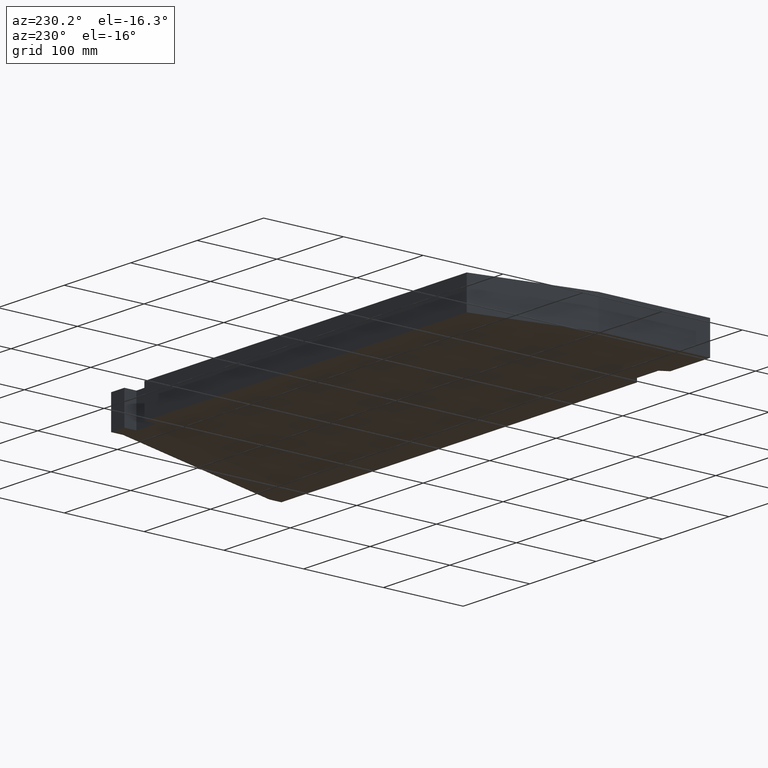
[diagram: clean part render]
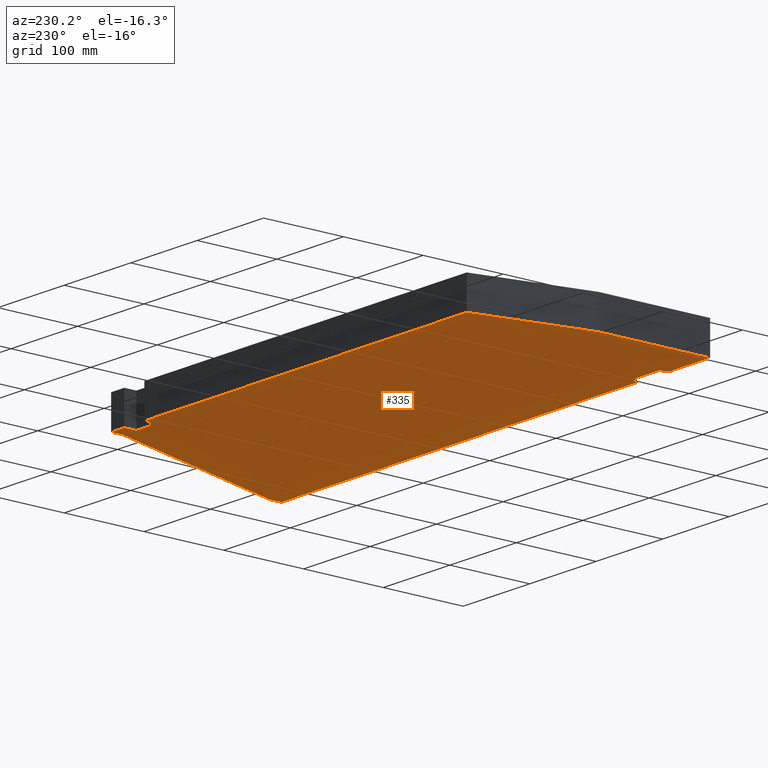
[diagram: same view with one face highlighted and labeled with its STEP entity id]
A machine part, auxiliary view. The second image highlights one B-rep face of the part: STEP entity #335.
In plain terms, the highlighted planar face has unit normal (0, 0, 1).
Its self-contained STEP definition (entity closure, byte-faithful):
#29=FACE_OUTER_BOUND($,#46,.T.);
#46=EDGE_LOOP($,(#287,#288,#289,#290,#291,#292,#293,#294,#295,#296,#297,
#298,#299,#300,#301));
#47=LINE($,#441,#92);
#51=LINE($,#449,#96);
#54=LINE($,#455,#99);
#57=LINE($,#461,#102);
#60=LINE($,#467,#105);
#63=LINE($,#473,#108);
#66=LINE($,#479,#111);
#69=LINE($,#485,#114);
#72=LINE($,#491,#117);
#75=LINE($,#497,#120);
#78=LINE($,#503,#123);
#81=LINE($,#509,#126);
#84=LINE($,#515,#129);
#87=LINE($,#521,#132);
#90=LINE($,#526,#135);
#92=VECTOR($,#360,143.178210632764);
#96=VECTOR($,#366,485.);
#99=VECTOR($,#371,15.);
#102=VECTOR($,#376,30.);
#105=VECTOR($,#381,15.);
#108=VECTOR($,#386,20.);
#111=VECTOR($,#391,15.);
#114=VECTOR($,#396,262.488094968134);
#117=VECTOR($,#401,14.9999999999999);
#120=VECTOR($,#406,535.);
#123=VECTOR($,#411,11.5470053837925);
#126=VECTOR($,#416,38.4529946162075);
#129=VECTOR($,#421,11.5470053837925);
#132=VECTOR($,#426,60.0000000000001);
#135=VECTOR($,#431,140.);
#137=VERTEX_POINT($,#439);
#138=VERTEX_POINT($,#440);
#141=VERTEX_POINT($,#448);
#143=VERTEX_POINT($,#454);
#145=VERTEX_POINT($,#460);
#147=VERTEX_POINT($,#466);
#149=VERTEX_POINT($,#472);
#151=VERTEX_POINT($,#478);
#153=VERTEX_POINT($,#484);
#155=VERTEX_POINT($,#490);
#157=VERTEX_POINT($,#496);
#159=VERTEX_POINT($,#502);
#161=VERTEX_POINT($,#508);
#163=VERTEX_POINT($,#514);
#165=VERTEX_POINT($,#520);
#167=EDGE_CURVE($,#137,#138,#47,.T.);
#171=EDGE_CURVE($,#138,#141,#51,.T.);
#174=EDGE_CURVE($,#141,#143,#54,.T.);
#177=EDGE_CURVE($,#143,#145,#57,.T.);
#180=EDGE_CURVE($,#145,#147,#60,.T.);
#183=EDGE_CURVE($,#147,#149,#63,.T.);
#186=EDGE_CURVE($,#149,#151,#66,.T.);
#189=EDGE_CURVE($,#151,#153,#69,.T.);
#192=EDGE_CURVE($,#153,#155,#72,.T.);
#195=EDGE_CURVE($,#155,#157,#75,.T.);
#198=EDGE_CURVE($,#157,#159,#78,.T.);
#201=EDGE_CURVE($,#159,#161,#81,.T.);
#204=EDGE_CURVE($,#161,#163,#84,.T.);
#207=EDGE_CURVE($,#163,#165,#87,.T.);
#210=EDGE_CURVE($,#165,#137,#90,.T.);
#287=ORIENTED_EDGE($,*,*,#210,.T.);
#288=ORIENTED_EDGE($,*,*,#167,.T.);
#289=ORIENTED_EDGE($,*,*,#171,.T.);
#290=ORIENTED_EDGE($,*,*,#174,.T.);
#291=ORIENTED_EDGE($,*,*,#177,.T.);
#292=ORIENTED_EDGE($,*,*,#180,.T.);
#293=ORIENTED_EDGE($,*,*,#183,.T.);
#294=ORIENTED_EDGE($,*,*,#186,.T.);
#295=ORIENTED_EDGE($,*,*,#189,.T.);
#296=ORIENTED_EDGE($,*,*,#192,.T.);
#297=ORIENTED_EDGE($,*,*,#195,.T.);
#298=ORIENTED_EDGE($,*,*,#198,.T.);
#299=ORIENTED_EDGE($,*,*,#201,.T.);
#300=ORIENTED_EDGE($,*,*,#204,.T.);
#301=ORIENTED_EDGE($,*,*,#207,.T.);
#318=PLANE($,#355);
#335=ADVANCED_FACE($,(#29),#318,.F.);
#355=AXIS2_PLACEMENT_3D($,#529,#435,#436);
#360=DIRECTION($,(0.209529088730874,0.97780241407741,0.));
#366=DIRECTION($,(1.,7.32518284288763E-017,0.));
#371=DIRECTION($,(0.,-1.,0.));
#376=DIRECTION($,(1.,0.,0.));
#381=DIRECTION($,(0.,1.,0.));
#386=DIRECTION($,(1.,0.,0.));
#391=DIRECTION($,(0.,-1.,0.));
#396=DIRECTION($,(0.304775727103784,-0.952424147199324,0.));
#401=DIRECTION($,(0.,-1.,0.));
#406=DIRECTION($,(-1.,-2.65623452620598E-016,0.));
#411=DIRECTION($,(-0.499999999999999,0.866025403784439,0.));
#416=DIRECTION($,(-1.,0.,0.));
#421=DIRECTION($,(-0.500000000000001,-0.866025403784438,0.));
#426=DIRECTION($,(-1.,0.,0.));
#431=DIRECTION($,(2.53765262771464E-016,1.,0.));
#435=DIRECTION('center_axis',(0.,0.,1.));
#436=DIRECTION('ref_axis',(1.,0.,0.));
#439=CARTESIAN_POINT('',(-179.031144331396,-20.3460207612457,0.));
#440=CARTESIAN_POINT('',(-149.031144331396,119.653979238754,0.));
#441=CARTESIAN_POINT($,(-179.031144331396,-20.3460207612457,0.));
#448=CARTESIAN_POINT('',(335.968855668604,119.653979238754,0.));
#449=CARTESIAN_POINT($,(-149.031144331396,119.653979238754,0.));
#454=CARTESIAN_POINT('',(335.968855668604,104.653979238754,0.));
#455=CARTESIAN_POINT($,(335.968855668604,119.653979238754,0.));
#460=CARTESIAN_POINT('',(365.968855668604,104.653979238754,0.));
#461=CARTESIAN_POINT($,(335.968855668604,104.653979238754,0.));
#466=CARTESIAN_POINT('',(365.968855668604,119.653979238754,0.));
#467=CARTESIAN_POINT($,(365.968855668604,104.653979238754,0.));
#472=CARTESIAN_POINT('',(385.968855668604,119.653979238754,0.));
#473=CARTESIAN_POINT($,(365.968855668604,119.653979238754,0.));
#478=CARTESIAN_POINT('',(385.968855668604,104.653979238754,0.));
#479=CARTESIAN_POINT($,(385.968855668604,119.653979238754,0.));
#484=CARTESIAN_POINT('',(465.968855668604,-145.346020761246,0.));
#485=CARTESIAN_POINT($,(385.968855668604,104.653979238754,0.));
#490=CARTESIAN_POINT('',(465.968855668604,-160.346020761246,0.));
#491=CARTESIAN_POINT($,(465.968855668604,-145.346020761246,0.));
#496=CARTESIAN_POINT('',(-69.0311443313964,-160.346020761246,0.));
#497=CARTESIAN_POINT($,(465.968855668604,-160.346020761246,0.));
#502=CARTESIAN_POINT('',(-74.8046470232926,-150.346020761246,0.));
#503=CARTESIAN_POINT($,(-69.0311443313964,-160.346020761246,0.));
#508=CARTESIAN_POINT('',(-113.2576416395,-150.346020761246,0.));
#509=CARTESIAN_POINT($,(-74.8046470232926,-150.346020761246,0.));
#514=CARTESIAN_POINT('',(-119.031144331396,-160.346020761246,0.));
#515=CARTESIAN_POINT($,(-113.2576416395,-150.346020761246,0.));
#520=CARTESIAN_POINT('',(-179.031144331396,-160.346020761246,0.));
#521=CARTESIAN_POINT($,(-119.031144331396,-160.346020761246,0.));
#526=CARTESIAN_POINT($,(-179.031144331396,-160.346020761246,0.));
#529=CARTESIAN_POINT('Origin',(134.320344126187,-27.4509681436136,0.));